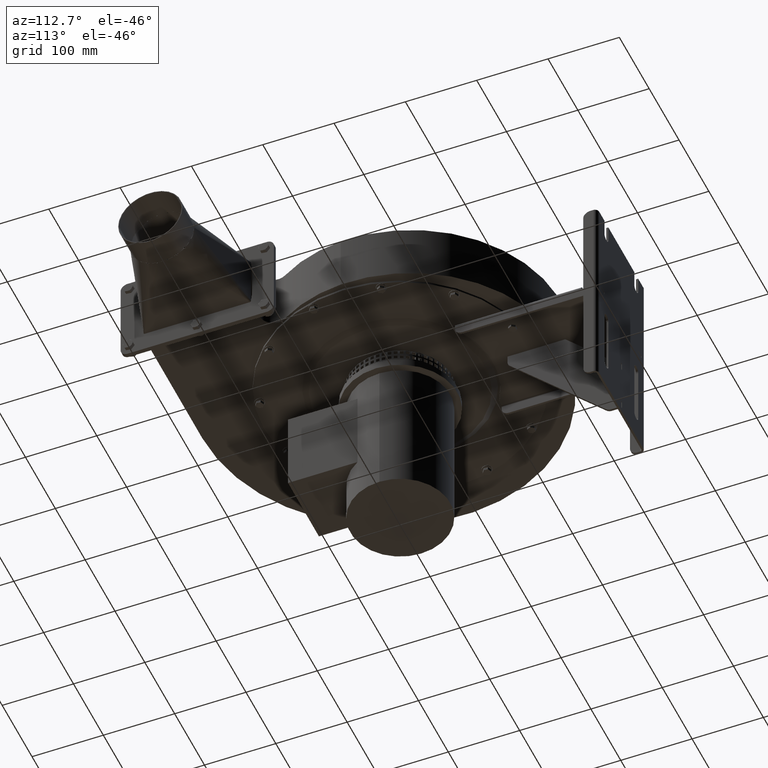
[diagram: clean part render]
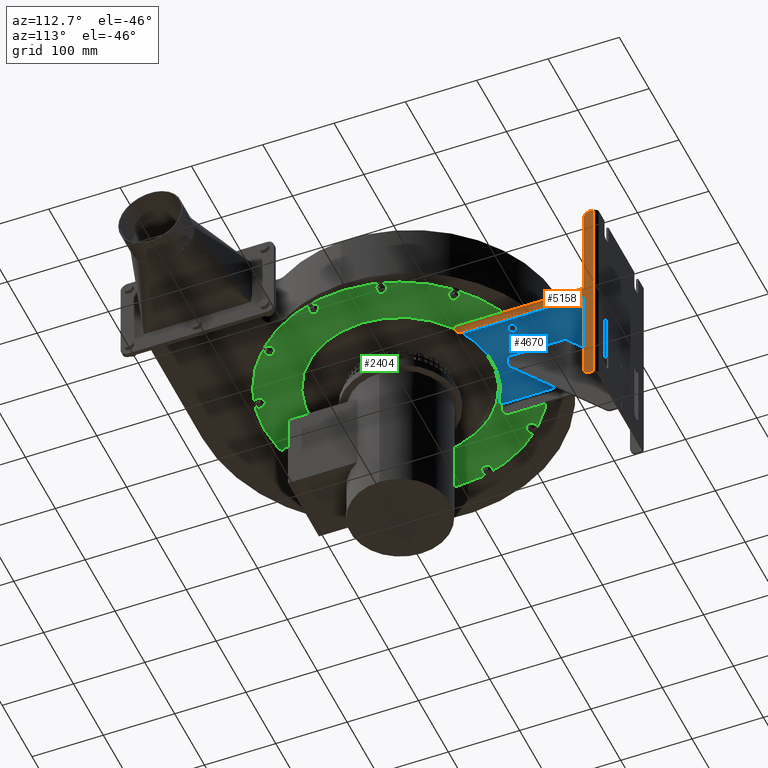
[diagram: same view with three faces highlighted in distinct colors, each labeled with its STEP entity id]
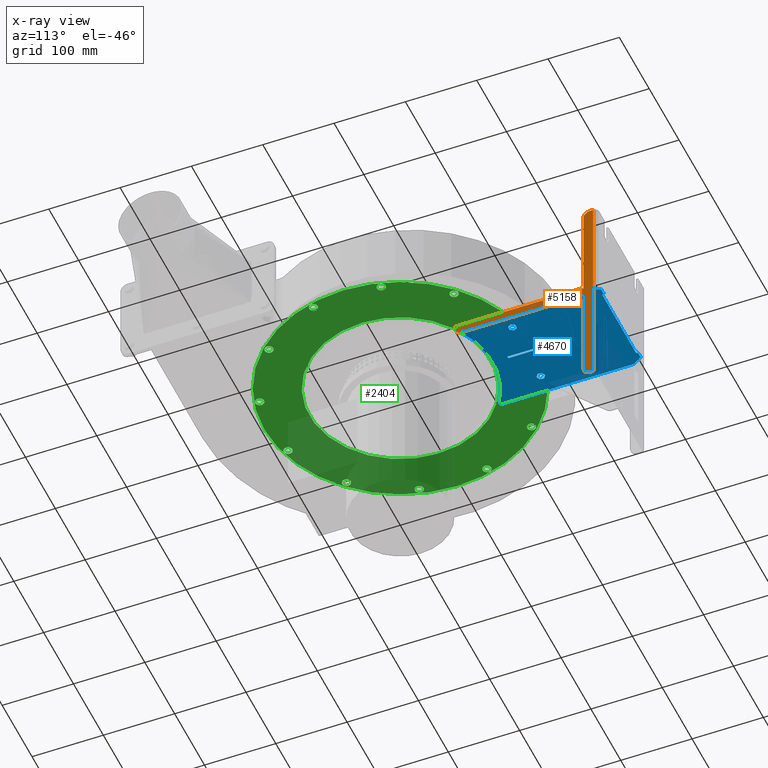
[diagram: x-ray of the same camera — body ghosted, the three highlighted faces saturated]
A machine part, auxiliary view with three faces highlighted in distinct colors.
The next image is the same camera in x-ray (body ghosted, the three faces saturated) — at least one of them is partly hidden behind the body in this view.
Their STEP definitions:

[orange] entity #5158 — the highlighted planar face has unit normal (1, 0, 0).
#5158 = ADVANCED_FACE( 'NONE', ( #11223 ), #11224, .T. );
#11223 = FACE_OUTER_BOUND( '', #18073, .T. );
#11224 = PLANE( '', #18074 );
#18073 = EDGE_LOOP( '', ( #32326, #32327, #32328, #32329, #32330, #32331, #32332, #32333, #32334, #32335, #32336, #32337, #32338 ) );
#18074 = AXIS2_PLACEMENT_3D( '', #32339, #32340, #32341 );
#32326 = ORIENTED_EDGE( '', *, *, #39845, .T. );
#32327 = ORIENTED_EDGE( '', *, *, #40245, .T. );
#32328 = ORIENTED_EDGE( '', *, *, #40079, .T. );
#32329 = ORIENTED_EDGE( '', *, *, #35974, .T. );
#32330 = ORIENTED_EDGE( '', *, *, #39797, .T. );
#32331 = ORIENTED_EDGE( '', *, *, #39052, .T. );
#32332 = ORIENTED_EDGE( '', *, *, #39491, .T. );
#32333 = ORIENTED_EDGE( '', *, *, #34883, .T. );
#32334 = ORIENTED_EDGE( '', *, *, #38090, .T. );
#32335 = ORIENTED_EDGE( '', *, *, #40307, .T. );
#32336 = ORIENTED_EDGE( '', *, *, #37129, .F. );
#32337 = ORIENTED_EDGE( '', *, *, #39239, .F. );
#32338 = ORIENTED_EDGE( '', *, *, #38079, .T. );
#32339 = CARTESIAN_POINT( '', ( 80.0000000000012, 310.000000000000, -249.000000000000 ) );
#32340 = DIRECTION( '', ( 1.00000000000000, 8.28133173932700E-193, 5.79331850487325E-119 ) );
#32341 = DIRECTION( '', ( 4.86679440971561E-208, 1.00000000000000, -1.42946253211538E-074 ) );
#34883 = EDGE_CURVE( 'NONE', #40968, #40969, #40970, .T. );
#35974 = EDGE_CURVE( 'NONE', #42857, #42855, #42858, .T. );
#37129 = EDGE_CURVE( 'NONE', #44842, #42385, #44844, .T. );
#38079 = EDGE_CURVE( 'NONE', #46296, #46293, #46297, .T. );
#38090 = EDGE_CURVE( 'NONE', #40969, #46310, #46312, .T. );
#39052 = EDGE_CURVE( 'NONE', #47713, #47714, #47715, .T. );
#39239 = EDGE_CURVE( 'NONE', #46296, #44842, #47951, .T. );
#39491 = EDGE_CURVE( 'NONE', #47714, #40968, #48262, .T. );
#39797 = EDGE_CURVE( 'NONE', #42855, #47713, #48618, .T. );
#39845 = EDGE_CURVE( 'NONE', #46293, #48673, #48675, .T. );
#40079 = EDGE_CURVE( 'NONE', #48939, #42857, #48943, .T. );
#40245 = EDGE_CURVE( 'NONE', #48673, #48939, #49130, .T. );
#40307 = EDGE_CURVE( 'NONE', #46310, #42385, #49195, .T. );
#40968 = VERTEX_POINT( 'NONE', #49789 );
#40969 = VERTEX_POINT( 'NONE', #49790 );
#40970 = LINE( '', #49791, #49792 );
#42385 = VERTEX_POINT( 'NONE', #52286 );
#42855 = VERTEX_POINT( 'NONE', #53082 );
#42857 = VERTEX_POINT( 'NONE', #53084 );
#42858 = LINE( '', #53085, #53086 );
#44842 = VERTEX_POINT( 'NONE', #56098 );
#44844 = LINE( '', #56100, #56101 );
#46293 = VERTEX_POINT( 'NONE', #58572 );
#46296 = VERTEX_POINT( 'NONE', #58576 );
#46297 = CIRCLE( '', #58577, 10.0000000000000 );
#46310 = VERTEX_POINT( 'NONE', #58591 );
#46312 = CIRCLE( '', #58594, 2.00000000000000 );
#47713 = VERTEX_POINT( 'NONE', #60946 );
#47714 = VERTEX_POINT( 'NONE', #60947 );
#47715 = LINE( '', #60948, #60949 );
#47951 = LINE( '', #61393, #61394 );
#48262 = CIRCLE( '', #62002, 10.0000000000000 );
#48618 = LINE( '', #62996, #62997 );
#48673 = VERTEX_POINT( 'NONE', #63099 );
#48675 = LINE( '', #63102, #63103 );
#48939 = VERTEX_POINT( 'NONE', #63533 );
#48943 = CIRCLE( '', #63538, 10.0000000000000 );
#49130 = LINE( '', #63869, #63870 );
#49195 = LINE( '', #63952, #63953 );
#49789 = CARTESIAN_POINT( '', ( 80.0000000000011, 290.000000000000, 41.0000000000000 ) );
#49790 = CARTESIAN_POINT( '', ( 80.0000000000009, 290.000000000000, -91.0000000000000 ) );
#49791 = CARTESIAN_POINT( '', ( 80.0000000000012, 290.000000000000, -249.000000000000 ) );
#49792 = VECTOR( '', #64600, 1000.00000000000 );
#52286 = CARTESIAN_POINT( '', ( 80.0000000000009, 287.000000000000, -89.0000000000000 ) );
#53082 = CARTESIAN_POINT( '', ( 80.0000000000012, 304.000000000000, -249.000000000000 ) );
#53084 = CARTESIAN_POINT( '', ( 80.0000000000012, 300.000000000000, -249.000000000000 ) );
#53085 = CARTESIAN_POINT( '', ( 80.0000000000012, 310.000000000000, -249.000000000000 ) );
#53086 = VECTOR( '', #65915, 1000.00000000000 );
#56098 = CARTESIAN_POINT( '', ( 80.0000000000010, 109.999999999998, -89.0000000000000 ) );
#56100 = CARTESIAN_POINT( '', ( 80.0000000000000, 200.000000000000, -89.0000000000000 ) );
#56101 = VECTOR( '', #67707, 1000.00000000000 );
#58572 = CARTESIAN_POINT( '', ( 80.0000000000010, 120.000000000000, -103.000000000000 ) );
#58576 = CARTESIAN_POINT( '', ( 80.0000000000010, 109.999999999998, -93.0000000000000 ) );
#58577 = AXIS2_PLACEMENT_3D( '', #68780, #68781, #68782 );
#58591 = CARTESIAN_POINT( '', ( 80.0000000000009, 288.000000000000, -89.0000000000000 ) );
#58594 = AXIS2_PLACEMENT_3D( '', #68797, #68798, #68799 );
#60946 = CARTESIAN_POINT( '', ( 80.0000000000012, 304.000000000000, 51.0000000000000 ) );
#60947 = CARTESIAN_POINT( '', ( 80.0000000000010, 300.000000000000, 51.0000000000000 ) );
#60948 = CARTESIAN_POINT( '', ( 80.0000000000012, 310.000000000000, 51.0000000000000 ) );
#60949 = VECTOR( '', #70058, 1000.00000000000 );
#61393 = CARTESIAN_POINT( '', ( 80.0000000000010, 109.999999999998, -96.0000000000000 ) );
#61394 = VECTOR( '', #70189, 1000.00000000000 );
#62002 = AXIS2_PLACEMENT_3D( '', #70364, #70365, #70366 );
#62996 = CARTESIAN_POINT( '', ( 80.0000000000012, 304.000000000000, -249.000000000000 ) );
#62997 = VECTOR( '', #70574, 1000.00000000000 );
#63099 = CARTESIAN_POINT( '', ( 80.0000000000012, 290.000000000000, -103.000000000000 ) );
#63102 = CARTESIAN_POINT( '', ( 80.0000000000012, 310.000000000000, -103.000000000000 ) );
#63103 = VECTOR( '', #70612, 1000.00000000000 );
#63533 = CARTESIAN_POINT( '', ( 80.0000000000012, 290.000000000000, -239.000000000000 ) );
#63538 = AXIS2_PLACEMENT_3D( '', #70761, #70762, #70763 );
#63869 = CARTESIAN_POINT( '', ( 80.0000000000012, 290.000000000000, -249.000000000000 ) );
#63870 = VECTOR( '', #70850, 1000.00000000000 );
#63952 = CARTESIAN_POINT( '', ( 80.0000000000012, 310.000000000000, -89.0000000000000 ) );
#63953 = VECTOR( '', #70877, 1000.00000000000 );
#64600 = DIRECTION( '', ( 0.000000000000000, 1.14904353122037E-015, -1.00000000000000 ) );
#65915 = DIRECTION( '', ( -3.52710303948052E-030, 1.00000000000000, 1.14904353122037E-015 ) );
#67707 = DIRECTION( '', ( -2.38753799732204E-015, 1.00000000000000, 0.000000000000000 ) );
#68780 = CARTESIAN_POINT( '', ( 80.0000000000010, 119.999999999998, -93.0000000000000 ) );
#68781 = DIRECTION( '', ( 1.00000000000000, 2.77555756156290E-015, 1.32856536664221E-015 ) );
#68782 = DIRECTION( '', ( 2.77555756156290E-015, -1.00000000000000, 0.000000000000000 ) );
#68797 = CARTESIAN_POINT( '', ( 80.0000000000000, 288.000000000000, -91.0000000000000 ) );
#68798 = DIRECTION( '', ( 1.00000000000000, -0.000000000000000, 1.13453682752503E-015 ) );
#68799 = DIRECTION( '', ( 0.000000000000000, 1.00000000000000, 0.000000000000000 ) );
#70058 = DIRECTION( '', ( 3.52710303948052E-030, -1.00000000000000, -1.14904353122037E-015 ) );
#70189 = DIRECTION( '', ( 0.000000000000000, 2.35400178016958E-030, 1.00000000000000 ) );
#70364 = CARTESIAN_POINT( '', ( 80.0000000000009, 300.000000000000, 41.0000000000000 ) );
#70365 = DIRECTION( '', ( 1.00000000000000, 1.38777878078144E-015, 1.51999659817486E-015 ) );
#70366 = DIRECTION( '', ( 1.38777878078144E-015, -1.00000000000000, 0.000000000000000 ) );
#70574 = DIRECTION( '', ( 0.000000000000000, -1.14904353122037E-015, 1.00000000000000 ) );
#70612 = DIRECTION( '', ( -3.52710303948052E-030, 1.00000000000000, 1.14904353122037E-015 ) );
#70761 = CARTESIAN_POINT( '', ( 80.0000000000012, 300.000000000000, -239.000000000000 ) );
#70762 = DIRECTION( '', ( 1.00000000000000, 2.77555756156289E-015, 1.56205655907477E-015 ) );
#70763 = DIRECTION( '', ( -2.77555756156289E-015, 1.00000000000000, 0.000000000000000 ) );
#70850 = DIRECTION( '', ( 0.000000000000000, 1.14904353122037E-015, -1.00000000000000 ) );
#70877 = DIRECTION( '', ( 3.52710303948052E-030, -1.00000000000000, -1.14904353122037E-015 ) );

[blue] entity #4670 — the highlighted planar face has unit normal (0, 0, -1).
#4670 = ADVANCED_FACE( 'NONE', ( #10394, #10395, #10396, #10397 ), #10398, .T. );
#10394 = FACE_OUTER_BOUND( '', #17198, .T. );
#10395 = FACE_BOUND( '', #17199, .T. );
#10396 = FACE_BOUND( '', #17200, .T. );
#10397 = FACE_BOUND( '', #17201, .T. );
#10398 = PLANE( '', #17202 );
#17198 = EDGE_LOOP( '', ( #30369, #30370, #30371, #30372, #30373, #30374, #30375, #30376, #30377, #30378, #30379, #30380, #30381, #30382, #30383, #30384, #30385, #30386, #30387, #30388, #30389, #30390 ) );
#17199 = EDGE_LOOP( '', ( #30391, #30392, #30393, #30394, #30395, #30396, #30397, #30398, #30399, #30400, #30401, #30402 ) );
#17200 = EDGE_LOOP( '', ( #30403, #30404, #30405, #30406, #30407, #30408 ) );
#17201 = EDGE_LOOP( '', ( #30409, #30410, #30411, #30412, #30413, #30414 ) );
#17202 = AXIS2_PLACEMENT_3D( '', #30415, #30416, #30417 );
#30369 = ORIENTED_EDGE( '', *, *, #39866, .F. );
#30370 = ORIENTED_EDGE( '', *, *, #39867, .T. );
#30371 = ORIENTED_EDGE( '', *, *, #39462, .T. );
#30372 = ORIENTED_EDGE( '', *, *, #37126, .F. );
#30373 = ORIENTED_EDGE( '', *, *, #36853, .T. );
#30374 = ORIENTED_EDGE( '', *, *, #39859, .T. );
#30375 = ORIENTED_EDGE( '', *, *, #37646, .F. );
#30376 = ORIENTED_EDGE( '', *, *, #39868, .F. );
#30377 = ORIENTED_EDGE( '', *, *, #38898, .F. );
#30378 = ORIENTED_EDGE( '', *, *, #38938, .F. );
#30379 = ORIENTED_EDGE( '', *, *, #39532, .F. );
#30380 = ORIENTED_EDGE( '', *, *, #39869, .T. );
#30381 = ORIENTED_EDGE( '', *, *, #35512, .F. );
#30382 = ORIENTED_EDGE( '', *, *, #39155, .F. );
#30383 = ORIENTED_EDGE( '', *, *, #39629, .T. );
#30384 = ORIENTED_EDGE( '', *, *, #39870, .F. );
#30385 = ORIENTED_EDGE( '', *, *, #39783, .F. );
#30386 = ORIENTED_EDGE( '', *, *, #39296, .T. );
#30387 = ORIENTED_EDGE( '', *, *, #39240, .F. );
#30388 = ORIENTED_EDGE( '', *, *, #37204, .F. );
#30389 = ORIENTED_EDGE( '', *, *, #39871, .T. );
#30390 = ORIENTED_EDGE( '', *, *, #37796, .F. );
#30391 = ORIENTED_EDGE( '', *, *, #39872, .T. );
#30392 = ORIENTED_EDGE( '', *, *, #37008, .T. );
#30393 = ORIENTED_EDGE( '', *, *, #39417, .T. );
#30394 = ORIENTED_EDGE( '', *, *, #37467, .T. );
#30395 = ORIENTED_EDGE( '', *, *, #39873, .T. );
#30396 = ORIENTED_EDGE( '', *, *, #39874, .T. );
#30397 = ORIENTED_EDGE( '', *, *, #39875, .T. );
#30398 = ORIENTED_EDGE( '', *, *, #39876, .T. );
#30399 = ORIENTED_EDGE( '', *, *, #39877, .T. );
#30400 = ORIENTED_EDGE( '', *, *, #37982, .T. );
#30401 = ORIENTED_EDGE( '', *, *, #39416, .T. );
#30402 = ORIENTED_EDGE( '', *, *, #39325, .T. );
#30403 = ORIENTED_EDGE( '', *, *, #35335, .T. );
#30404 = ORIENTED_EDGE( '', *, *, #36967, .T. );
#30405 = ORIENTED_EDGE( '', *, *, #35637, .T. );
#30406 = ORIENTED_EDGE( '', *, *, #37159, .T. );
#30407 = ORIENTED_EDGE( '', *, *, #39339, .T. );
#30408 = ORIENTED_EDGE( '', *, *, #39878, .T. );
#30409 = ORIENTED_EDGE( '', *, *, #39483, .T. );
#30410 = ORIENTED_EDGE( '', *, *, #39430, .T. );
#30411 = ORIENTED_EDGE( '', *, *, #39879, .T. );
#30412 = ORIENTED_EDGE( '', *, *, #39466, .T. );
#30413 = ORIENTED_EDGE( '', *, *, #39412, .T. );
#30414 = ORIENTED_EDGE( '', *, *, #37076, .T. );
#30415 = CARTESIAN_POINT( '', ( 7.86035751569564E-013, 201.589759900118, -86.0000000000000 ) );
#30416 = DIRECTION( '', ( 1.11943758389703E-015, 3.36844631226473E-031, -1.00000000000000 ) );
#30417 = DIRECTION( '', ( 0.000000000000000, -1.00000000000000, -3.36844631226473E-031 ) );
#35335 = EDGE_CURVE( 'NONE', #41762, #41767, #41769, .T. );
#35512 = EDGE_CURVE( 'NONE', #42071, #42073, #42074, .T. );
#35637 = EDGE_CURVE( 'NONE', #42275, #42280, #42282, .T. );
#36853 = EDGE_CURVE( 'NONE', #44409, #44413, #44415, .T. );
#36967 = EDGE_CURVE( 'NONE', #41767, #42275, #44591, .T. );
#37008 = EDGE_CURVE( 'NONE', #44653, #44651, #44654, .T. );
#37076 = EDGE_CURVE( 'NONE', #44752, #44757, #44759, .T. );
#37126 = EDGE_CURVE( 'NONE', #44409, #44836, #44840, .T. );
#37159 = EDGE_CURVE( 'NONE', #42280, #44888, #44890, .T. );
#37204 = EDGE_CURVE( 'NONE', #44956, #44954, #44958, .T. );
#37467 = EDGE_CURVE( 'NONE', #42538, #45391, #45393, .T. );
#37646 = EDGE_CURVE( 'NONE', #45660, #45661, #45662, .T. );
#37796 = EDGE_CURVE( 'NONE', #45881, #45879, #45883, .T. );
#37982 = EDGE_CURVE( 'NONE', #46150, #42536, #46151, .T. );
#38898 = EDGE_CURVE( 'NONE', #43118, #47508, #47509, .T. );
#38938 = EDGE_CURVE( 'NONE', #46217, #43118, #47565, .T. );
#39155 = EDGE_CURVE( 'NONE', #47844, #42071, #47846, .T. );
#39240 = EDGE_CURVE( 'NONE', #44954, #47952, #47953, .T. );
#39296 = EDGE_CURVE( 'NONE', #42381, #47952, #48023, .T. );
#39325 = EDGE_CURVE( 'NONE', #48059, #48057, #48060, .T. );
#39339 = EDGE_CURVE( 'NONE', #44888, #48075, #48077, .T. );
#39412 = EDGE_CURVE( 'NONE', #48160, #44752, #48162, .T. );
#39416 = EDGE_CURVE( 'NONE', #42536, #48059, #48167, .T. );
#39417 = EDGE_CURVE( 'NONE', #44651, #42538, #48168, .T. );
#39430 = EDGE_CURVE( 'NONE', #48181, #48183, #48185, .T. );
#39462 = EDGE_CURVE( 'NONE', #48227, #44836, #48228, .T. );
#39466 = EDGE_CURVE( 'NONE', #48231, #48160, #48233, .T. );
#39483 = EDGE_CURVE( 'NONE', #44757, #48181, #48253, .T. );
#39532 = EDGE_CURVE( 'NONE', #48314, #46217, #48316, .T. );
#39629 = EDGE_CURVE( 'NONE', #47844, #48430, #48432, .T. );
#39783 = EDGE_CURVE( 'NONE', #42381, #48599, #48600, .T. );
#39859 = EDGE_CURVE( 'NONE', #44413, #45661, #48692, .T. );
#39866 = EDGE_CURVE( 'NONE', #48699, #45881, #48700, .T. );
#39867 = EDGE_CURVE( 'NONE', #48699, #48227, #48701, .T. );
#39868 = EDGE_CURVE( 'NONE', #47508, #45660, #48702, .T. );
#39869 = EDGE_CURVE( 'NONE', #48314, #42073, #48703, .T. );
#39870 = EDGE_CURVE( 'NONE', #48599, #48430, #48704, .T. );
#39871 = EDGE_CURVE( 'NONE', #44956, #45879, #48705, .T. );
#39872 = EDGE_CURVE( 'NONE', #48057, #44653, #48706, .T. );
#39873 = EDGE_CURVE( 'NONE', #45391, #48707, #48708, .T. );
#39874 = EDGE_CURVE( 'NONE', #48707, #48709, #48710, .T. );
#39875 = EDGE_CURVE( 'NONE', #48709, #48711, #48712, .T. );
#39876 = EDGE_CURVE( 'NONE', #48711, #48713, #48714, .T. );
#39877 = EDGE_CURVE( 'NONE', #48713, #46150, #48715, .T. );
#39878 = EDGE_CURVE( 'NONE', #48075, #41762, #48716, .T. );
#39879 = EDGE_CURVE( 'NONE', #48183, #48231, #48717, .T. );
#41762 = VERTEX_POINT( 'NONE', #51086 );
#41767 = VERTEX_POINT( 'NONE', #51096 );
#41769 = LINE( '', #51099, #51100 );
#42071 = VERTEX_POINT( 'NONE', #51549 );
#42073 = VERTEX_POINT( 'NONE', #51552 );
#42074 = LINE( '', #51553, #51554 );
#42275 = VERTEX_POINT( 'NONE', #52030 );
#42280 = VERTEX_POINT( 'NONE', #52040 );
#42282 = LINE( '', #52043, #52044 );
#42381 = VERTEX_POINT( 'NONE', #52281 );
#42536 = VERTEX_POINT( 'NONE', #52556 );
#42538 = VERTEX_POINT( 'NONE', #52559 );
#43118 = VERTEX_POINT( 'NONE', #53515 );
#44409 = VERTEX_POINT( 'NONE', #55330 );
#44413 = VERTEX_POINT( 'NONE', #55336 );
#44415 = LINE( '', #55339, #55340 );
#44591 = LINE( '', #55644, #55645 );
#44651 = VERTEX_POINT( 'NONE', #55739 );
#44653 = VERTEX_POINT( 'NONE', #55742 );
#44654 = LINE( '', #55743, #55744 );
#44752 = VERTEX_POINT( 'NONE', #55947 );
#44757 = VERTEX_POINT( 'NONE', #55957 );
#44759 = LINE( '', #55960, #55961 );
#44836 = VERTEX_POINT( 'NONE', #56091 );
#44840 = CIRCLE( '', #56096, 2.00000000000000 );
#44888 = VERTEX_POINT( 'NONE', #56164 );
#44890 = LINE( '', #56167, #56168 );
#44954 = VERTEX_POINT( 'NONE', #56260 );
#44956 = VERTEX_POINT( 'NONE', #56263 );
#44958 = CIRCLE( '', #56266, 2.00000000000000 );
#45391 = VERTEX_POINT( 'NONE', #57026 );
#45393 = LINE( '', #57029, #57030 );
#45660 = VERTEX_POINT( 'NONE', #57468 );
#45661 = VERTEX_POINT( 'NONE', #57469 );
#45662 = LINE( '', #57470, #57471 );
#45879 = VERTEX_POINT( 'NONE', #57840 );
#45881 = VERTEX_POINT( 'NONE', #57843 );
#45883 = CIRCLE( '', #57846, 2.00000000000000 );
#46150 = VERTEX_POINT( 'NONE', #58337 );
#46151 = LINE( '', #58338, #58339 );
#46217 = VERTEX_POINT( 'NONE', #58447 );
#47508 = VERTEX_POINT( 'NONE', #60599 );
#47509 = LINE( '', #60600, #60601 );
#47565 = LINE( '', #60678, #60679 );
#47844 = VERTEX_POINT( 'NONE', #61206 );
#47846 = LINE( '', #61209, #61210 );
#47952 = VERTEX_POINT( 'NONE', #61395 );
#47953 = LINE( '', #61396, #61397 );
#48023 = LINE( '', #61557, #61558 );
#48057 = VERTEX_POINT( 'NONE', #61618 );
#48059 = VERTEX_POINT( 'NONE', #61621 );
#48060 = LINE( '', #61622, #61623 );
#48075 = VERTEX_POINT( 'NONE', #61645 );
#48077 = LINE( '', #61648, #61649 );
#48160 = VERTEX_POINT( 'NONE', #61837 );
#48162 = LINE( '', #61840, #61841 );
#48167 = LINE( '', #61846, #61847 );
#48168 = LINE( '', #61848, #61849 );
#48181 = VERTEX_POINT( 'NONE', #61870 );
#48183 = VERTEX_POINT( 'NONE', #61873 );
#48185 = LINE( '', #61876, #61877 );
#48227 = VERTEX_POINT( 'NONE', #61934 );
#48228 = LINE( '', #61935, #61936 );
#48231 = VERTEX_POINT( 'NONE', #61940 );
#48233 = LINE( '', #61943, #61944 );
#48253 = LINE( '', #61990, #61991 );
#48314 = VERTEX_POINT( 'NONE', #62063 );
#48316 = LINE( '', #62066, #62067 );
#48430 = VERTEX_POINT( 'NONE', #62299 );
#48432 = LINE( '', #62302, #62303 );
#48599 = VERTEX_POINT( 'NONE', #62951 );
#48600 = LINE( '', #62952, #62953 );
#48692 = LINE( '', #63133, #63134 );
#48699 = VERTEX_POINT( 'NONE', #63142 );
#48700 = LINE( '', #63143, #63144 );
#48701 = LINE( '', #63145, #63146 );
#48702 = LINE( '', #63147, #63148 );
#48703 = LINE( '', #63149, #63150 );
#48704 = CIRCLE( '', #63151, 2.00000000000000 );
#48705 = CIRCLE( '', #63152, 131.000000000000 );
#48706 = LINE( '', #63153, #63154 );
#48707 = VERTEX_POINT( 'NONE', #63155 );
#48708 = LINE( '', #63156, #63157 );
#48709 = VERTEX_POINT( 'NONE', #63158 );
#48710 = LINE( '', #63159, #63160 );
#48711 = VERTEX_POINT( 'NONE', #63161 );
#48712 = LINE( '', #63162, #63163 );
#48713 = VERTEX_POINT( 'NONE', #63164 );
#48714 = LINE( '', #63165, #63166 );
#48715 = LINE( '', #63167, #63168 );
#48716 = LINE( '', #63169, #63170 );
#48717 = LINE( '', #63171, #63172 );
#51086 = CARTESIAN_POINT( '', ( 53.2467199845890, 177.728462617496, -86.0000000000000 ) );
#51096 = CARTESIAN_POINT( '', ( 49.9533855140331, 182.470538259911, -86.0000000000000 ) );
#51099 = CARTESIAN_POINT( '', ( 53.2467199845890, 177.728462617496, -86.0000000000000 ) );
#51100 = VECTOR( '', #65167, 1000.00000000000 );
#51549 = CARTESIAN_POINT( '', ( 67.0000000000000, 309.500000000000, -86.0000000000000 ) );
#51552 = CARTESIAN_POINT( '', ( 57.0000000000000, 309.500000000000, -86.0000000000000 ) );
#51553 = CARTESIAN_POINT( '', ( 67.0000000000000, 309.500000000000, -86.0000000000000 ) );
#51554 = VECTOR( '', #65377, 1000.00000000000 );
#52030 = CARTESIAN_POINT( '', ( 44.1999603057567, 181.989464766458, -86.0000000000000 ) );
#52040 = CARTESIAN_POINT( '', ( 41.7398695680361, 176.766315630590, -86.0000000000000 ) );
#52043 = CARTESIAN_POINT( '', ( 44.1999603057567, 181.989464766458, -86.0000000000000 ) );
#52044 = VECTOR( '', #65498, 1000.00000000000 );
#52281 = CARTESIAN_POINT( '', ( 74.0000000000000, 287.000000000000, -86.0000000000000 ) );
#52556 = CARTESIAN_POINT( '', ( -1.49999999999959, 161.200000000000, -86.0000000000000 ) );
#52559 = CARTESIAN_POINT( '', ( 1.50000000000035, 161.200000000000, -86.0000000000000 ) );
#53515 = CARTESIAN_POINT( '', ( -56.7999999999993, 307.000000000000, -86.0000000000000 ) );
#55330 = CARTESIAN_POINT( '', ( -73.6384638410392, 297.516480227087, -86.0000000000000 ) );
#55336 = CARTESIAN_POINT( '', ( -67.0000000000000, 307.000000000000, -86.0000000000000 ) );
#55339 = CARTESIAN_POINT( '', ( -74.0000000000000, 297.000000000000, -86.0000000000000 ) );
#55340 = VECTOR( '', #67369, 1000.00000000000 );
#55644 = CARTESIAN_POINT( '', ( 49.9533855140333, 182.470538259910, -86.0000000000000 ) );
#55645 = VECTOR( '', #67496, 1000.00000000000 );
#55739 = CARTESIAN_POINT( '', ( 1.60000000000093, 161.200000000000, -86.0000000000000 ) );
#55742 = CARTESIAN_POINT( '', ( 1.60000000000094, 150.800000000000, -86.0000000000000 ) );
#55743 = CARTESIAN_POINT( '', ( 1.60000000000094, 201.589759900118, -86.0000000000000 ) );
#55744 = VECTOR( '', #67543, 1000.00000000000 );
#55947 = CARTESIAN_POINT( '', ( -42.2701456404444, 174.787298386323, -86.0000000000000 ) );
#55957 = CARTESIAN_POINT( '', ( -42.7512191338974, 180.540723594599, -86.0000000000000 ) );
#55960 = CARTESIAN_POINT( '', ( -42.2701456404444, 174.787298386323, -86.0000000000000 ) );
#55961 = VECTOR( '', #67625, 1000.00000000000 );
#56091 = CARTESIAN_POINT( '', ( -74.0000000000000, 296.369555538359, -86.0000000000000 ) );
#56096 = AXIS2_PLACEMENT_3D( '', #67701, #67702, #67703 );
#56164 = CARTESIAN_POINT( '', ( 45.0332040385920, 172.024239988176, -86.0000000000000 ) );
#56167 = CARTESIAN_POINT( '', ( 41.7398695680363, 176.766315630590, -86.0000000000000 ) );
#56168 = VECTOR( '', #67743, 1000.00000000000 );
#56260 = CARTESIAN_POINT( '', ( 69.7860725524613, 109.999999999998, -86.0000000000000 ) );
#56263 = CARTESIAN_POINT( '', ( 68.7366579276122, 110.297434598860, -86.0000000000000 ) );
#56266 = AXIS2_PLACEMENT_3D( '', #67793, #67794, #67795 );
#57026 = CARTESIAN_POINT( '', ( 1.50000000000054, 221.800000000000, -86.0000000000000 ) );
#57029 = CARTESIAN_POINT( '', ( 1.50000000000035, 201.589759900118, -86.0000000000000 ) );
#57030 = VECTOR( '', #68185, 1000.00000000000 );
#57468 = CARTESIAN_POINT( '', ( -57.0000000000000, 309.500000000000, -86.0000000000000 ) );
#57469 = CARTESIAN_POINT( '', ( -67.0000000000000, 309.500000000000, -86.0000000000000 ) );
#57470 = CARTESIAN_POINT( '', ( -67.0000000000000, 309.500000000000, -86.0000000000000 ) );
#57471 = VECTOR( '', #68365, 1000.00000000000 );
#57840 = CARTESIAN_POINT( '', ( -68.7366579276101, 110.297434598859, -86.0000000000000 ) );
#57843 = CARTESIAN_POINT( '', ( -69.7860725524591, 109.999999999997, -86.0000000000000 ) );
#57846 = AXIS2_PLACEMENT_3D( '', #68526, #68527, #68528 );
#58337 = CARTESIAN_POINT( '', ( -1.49999999999940, 221.800000000000, -86.0000000000000 ) );
#58338 = CARTESIAN_POINT( '', ( -1.49999999999939, 201.589759900118, -86.0000000000000 ) );
#58339 = VECTOR( '', #68693, 1000.00000000000 );
#58447 = CARTESIAN_POINT( '', ( 56.8000000000010, 307.000000000000, -86.0000000000000 ) );
#60599 = CARTESIAN_POINT( '', ( -57.0000000000000, 307.000000000000, -86.0000000000000 ) );
#60600 = CARTESIAN_POINT( '', ( 74.0000000000000, 307.000000000000, -86.0000000000000 ) );
#60601 = VECTOR( '', #69928, 1000.00000000000 );
#60678 = CARTESIAN_POINT( '', ( 1.00251468229415E-012, 307.000000000000, -86.0000000000000 ) );
#60679 = VECTOR( '', #69974, 1000.00000000000 );
#61206 = CARTESIAN_POINT( '', ( 67.0000000000000, 307.000000000000, -86.0000000000000 ) );
#61209 = CARTESIAN_POINT( '', ( 67.0000000000000, 308.250000000000, -86.0000000000000 ) );
#61210 = VECTOR( '', #70134, 1000.00000000000 );
#61395 = CARTESIAN_POINT( '', ( 74.0000000000010, 109.999999999998, -86.0000000000000 ) );
#61396 = CARTESIAN_POINT( '', ( 78.5000000000011, 109.999999999998, -86.0000000000000 ) );
#61397 = VECTOR( '', #70190, 1000.00000000000 );
#61557 = CARTESIAN_POINT( '', ( 74.0000000000008, 200.000000000000, -86.0000000000000 ) );
#61558 = VECTOR( '', #70234, 1000.00000000000 );
#61618 = CARTESIAN_POINT( '', ( -1.59999999999907, 150.800000000000, -86.0000000000000 ) );
#61621 = CARTESIAN_POINT( '', ( -1.59999999999909, 161.200000000000, -86.0000000000000 ) );
#61622 = CARTESIAN_POINT( '', ( -1.59999999999910, 201.589759900118, -86.0000000000000 ) );
#61623 = VECTOR( '', #70254, 1000.00000000000 );
#61645 = CARTESIAN_POINT( '', ( 50.7866292468686, 172.505313481629, -86.0000000000000 ) );
#61648 = CARTESIAN_POINT( '', ( 45.0332040385921, 172.024239988176, -86.0000000000000 ) );
#61649 = VECTOR( '', #70262, 1000.00000000000 );
#61837 = CARTESIAN_POINT( '', ( -47.0122212828589, 171.493963915767, -86.0000000000000 ) );
#61840 = CARTESIAN_POINT( '', ( -47.0122212828591, 171.493963915767, -86.0000000000000 ) );
#61841 = VECTOR( '', #70306, 1000.00000000000 );
#61846 = CARTESIAN_POINT( '', ( 7.86035751569564E-013, 161.200000000000, -86.0000000000000 ) );
#61847 = VECTOR( '', #70310, 1000.00000000000 );
#61848 = CARTESIAN_POINT( '', ( 7.86035751569564E-013, 161.200000000000, -86.0000000000000 ) );
#61849 = VECTOR( '', #70311, 1000.00000000000 );
#61870 = CARTESIAN_POINT( '', ( -47.9743682697652, 183.000814332320, -86.0000000000000 ) );
#61873 = CARTESIAN_POINT( '', ( -52.7164439121798, 179.707479861764, -86.0000000000000 ) );
#61876 = CARTESIAN_POINT( '', ( -47.9743682697651, 183.000814332320, -86.0000000000000 ) );
#61877 = VECTOR( '', #70318, 1000.00000000000 );
#61934 = CARTESIAN_POINT( '', ( -74.0000000000000, 287.000000000000, -86.0000000000000 ) );
#61935 = CARTESIAN_POINT( '', ( -74.0000000000000, 298.500000000000, -86.0000000000000 ) );
#61936 = VECTOR( '', #70346, 1000.00000000000 );
#61940 = CARTESIAN_POINT( '', ( -52.2353704187267, 173.954054653488, -86.0000000000000 ) );
#61943 = CARTESIAN_POINT( '', ( -52.2353704187266, 173.954054653488, -86.0000000000000 ) );
#61944 = VECTOR( '', #70349, 1000.00000000000 );
#61990 = CARTESIAN_POINT( '', ( -42.7512191338972, 180.540723594599, -86.0000000000000 ) );
#61991 = VECTOR( '', #70358, 1000.00000000000 );
#62063 = CARTESIAN_POINT( '', ( 57.0000000000000, 307.000000000000, -86.0000000000000 ) );
#62066 = CARTESIAN_POINT( '', ( 74.0000000000000, 307.000000000000, -86.0000000000000 ) );
#62067 = VECTOR( '', #70410, 1000.00000000000 );
#62299 = CARTESIAN_POINT( '', ( 73.6384638410387, 297.516480227087, -86.0000000000000 ) );
#62302 = CARTESIAN_POINT( '', ( 67.0000000000000, 307.000000000000, -86.0000000000000 ) );
#62303 = VECTOR( '', #70488, 1000.00000000000 );
#62951 = CARTESIAN_POINT( '', ( 74.0000000000000, 296.369555538360, -86.0000000000000 ) );
#62952 = CARTESIAN_POINT( '', ( 74.0000000000000, 298.500000000000, -86.0000000000000 ) );
#62953 = VECTOR( '', #70563, 1000.00000000000 );
#63133 = CARTESIAN_POINT( '', ( -67.0000000000000, 308.250000000000, -86.0000000000000 ) );
#63134 = VECTOR( '', #70618, 1000.00000000000 );
#63142 = CARTESIAN_POINT( '', ( -73.9999999999991, 109.999999999997, -86.0000000000000 ) );
#63143 = CARTESIAN_POINT( '', ( -78.4999999999989, 109.999999999997, -86.0000000000000 ) );
#63144 = VECTOR( '', #70620, 1000.00000000000 );
#63145 = CARTESIAN_POINT( '', ( -73.9999999999992, 201.589759900118, -86.0000000000000 ) );
#63146 = VECTOR( '', #70621, 1000.00000000000 );
#63147 = CARTESIAN_POINT( '', ( -57.0000000000000, 308.250000000000, -86.0000000000000 ) );
#63148 = VECTOR( '', #70622, 1000.00000000000 );
#63149 = CARTESIAN_POINT( '', ( 57.0000000000000, 308.250000000000, -86.0000000000000 ) );
#63150 = VECTOR( '', #70623, 1000.00000000000 );
#63151 = AXIS2_PLACEMENT_3D( '', #70624, #70625, #70626 );
#63152 = AXIS2_PLACEMENT_3D( '', #70627, #70628, #70629 );
#63153 = CARTESIAN_POINT( '', ( 7.86035751569564E-013, 150.800000000000, -86.0000000000000 ) );
#63154 = VECTOR( '', #70630, 1000.00000000000 );
#63155 = CARTESIAN_POINT( '', ( 1.60000000000075, 221.800000000000, -86.0000000000000 ) );
#63156 = CARTESIAN_POINT( '', ( 1.60000000000076, 221.800000000000, -86.0000000000000 ) );
#63157 = VECTOR( '', #70631, 1000.00000000000 );
#63158 = CARTESIAN_POINT( '', ( 1.60000000000074, 232.200000000000, -86.0000000000000 ) );
#63159 = CARTESIAN_POINT( '', ( 1.60000000000073, 232.200000000000, -86.0000000000000 ) );
#63160 = VECTOR( '', #70632, 1000.00000000000 );
#63161 = CARTESIAN_POINT( '', ( -1.59999999999927, 232.200000000000, -86.0000000000000 ) );
#63162 = CARTESIAN_POINT( '', ( -1.59999999999927, 232.200000000000, -86.0000000000000 ) );
#63163 = VECTOR( '', #70633, 1000.00000000000 );
#63164 = CARTESIAN_POINT( '', ( -1.59999999999925, 221.800000000000, -86.0000000000000 ) );
#63165 = CARTESIAN_POINT( '', ( -1.59999999999924, 221.800000000000, -86.0000000000000 ) );
#63166 = VECTOR( '', #70634, 1000.00000000000 );
#63167 = CARTESIAN_POINT( '', ( 1.60000000000076, 221.800000000000, -86.0000000000000 ) );
#63168 = VECTOR( '', #70635, 1000.00000000000 );
#63169 = CARTESIAN_POINT( '', ( 50.7866292468687, 172.505313481629, -86.0000000000000 ) );
#63170 = VECTOR( '', #70636, 1000.00000000000 );
#63171 = CARTESIAN_POINT( '', ( -52.7164439121797, 179.707479861764, -86.0000000000000 ) );
#63172 = VECTOR( '', #70637, 1000.00000000000 );
#65167 = DIRECTION( '', ( -0.570422262932066, 0.821351594599695, 0.000000000000000 ) );
#65377 = DIRECTION( '', ( -1.00000000000000, 0.000000000000000, -4.33468124082052E-045 ) );
#65498 = DIRECTION( '', ( -0.426100214896149, -0.904675967883228, -2.40370335797931E-015 ) );
#67369 = DIRECTION( '', ( 0.573462344363322, 0.819231920519045, -1.31011285965312E-015 ) );
#67496 = DIRECTION( '', ( -0.996522477828225, -0.0833243732835383, 0.000000000000000 ) );
#67543 = DIRECTION( '', ( 0.000000000000000, 1.00000000000000, 3.36844631226473E-031 ) );
#67625 = DIRECTION( '', ( -0.0833243732835283, 0.996522477828226, 0.000000000000000 ) );
#67701 = CARTESIAN_POINT( '', ( -72.0000000000000, 296.369555538359, -86.0000000000000 ) );
#67702 = DIRECTION( '', ( -1.01179291069917E-016, 5.61657892805361E-030, 1.00000000000000 ) );
#67703 = DIRECTION( '', ( 5.55111512312578E-014, 1.00000000000000, 4.20389539297445E-045 ) );
#67743 = DIRECTION( '', ( 0.570422262932079, -0.821351594599685, 2.40370335797965E-015 ) );
#67793 = CARTESIAN_POINT( '', ( 69.7860725524613, 111.999999999998, -86.0000000000000 ) );
#67794 = DIRECTION( '', ( 0.000000000000000, 2.93688543036799E-016, 1.00000000000000 ) );
#67795 = DIRECTION( '', ( -1.00000000000000, 0.000000000000000, 0.000000000000000 ) );
#68185 = DIRECTION( '', ( 0.000000000000000, 1.00000000000000, 3.36844631226473E-031 ) );
#68365 = DIRECTION( '', ( -1.00000000000000, 0.000000000000000, -4.33468124082052E-045 ) );
#68526 = CARTESIAN_POINT( '', ( -69.7860725524591, 111.999999999998, -86.0000000000000 ) );
#68527 = DIRECTION( '', ( 2.03787364092544E-030, -2.93688543036799E-016, 1.00000000000000 ) );
#68528 = DIRECTION( '', ( -1.00000000000000, -6.93889390390722E-015, 1.75162308040602E-045 ) );
#68693 = DIRECTION( '', ( 0.000000000000000, -1.00000000000000, -3.36844631226473E-031 ) );
#69928 = DIRECTION( '', ( -1.00000000000000, 0.000000000000000, -5.15184398060085E-045 ) );
#69974 = DIRECTION( '', ( -1.00000000000000, -1.92055561245564E-015, 5.76273050867317E-031 ) );
#70134 = DIRECTION( '', ( -4.25726037283229E-030, 1.00000000000000, 1.11943758389705E-015 ) );
#70190 = DIRECTION( '', ( 1.00000000000000, 2.38753799732204E-015, -5.62026869591860E-045 ) );
#70234 = DIRECTION( '', ( 2.38753799732204E-015, -1.00000000000000, 0.000000000000000 ) );
#70254 = DIRECTION( '', ( 0.000000000000000, -1.00000000000000, -3.36844631226473E-031 ) );
#70262 = DIRECTION( '', ( 0.996522477828226, 0.0833243732835341, 0.000000000000000 ) );
#70306 = DIRECTION( '', ( 0.821351594599693, 0.570422262932068, 2.40370335797942E-015 ) );
#70310 = DIRECTION( '', ( -1.00000000000000, 3.77076540128849E-046, -1.11943758389703E-015 ) );
#70311 = DIRECTION( '', ( -1.00000000000000, 3.77076540128849E-046, -1.11943758389703E-015 ) );
#70318 = DIRECTION( '', ( -0.821351594599691, -0.570422262932071, 0.000000000000000 ) );
#70346 = DIRECTION( '', ( -3.60256745960639E-030, 1.00000000000000, 1.11943758389703E-015 ) );
#70349 = DIRECTION( '', ( 0.904675967883221, -0.426100214896164, 0.000000000000000 ) );
#70358 = DIRECTION( '', ( -0.904675967883230, 0.426100214896145, -2.40370335797937E-015 ) );
#70410 = DIRECTION( '', ( -1.00000000000000, 0.000000000000000, -5.15184398060085E-045 ) );
#70488 = DIRECTION( '', ( 0.573462344363327, -0.819231920519041, 0.000000000000000 ) );
#70563 = DIRECTION( '', ( -3.60256745960639E-030, 1.00000000000000, 1.11943758389703E-015 ) );
#70618 = DIRECTION( '', ( -4.25726037283203E-030, 1.00000000000000, 1.11943758389703E-015 ) );
#70620 = DIRECTION( '', ( 1.00000000000000, 2.68359747055541E-015, -7.15789308026584E-045 ) );
#70621 = DIRECTION( '', ( 0.000000000000000, 1.00000000000000, 3.36844631226473E-031 ) );
#70622 = DIRECTION( '', ( -4.25726037283203E-030, 1.00000000000000, 1.11943758389703E-015 ) );
#70623 = DIRECTION( '', ( -4.25726037283229E-030, 1.00000000000000, 1.11943758389705E-015 ) );
#70624 = CARTESIAN_POINT( '', ( 72.0000000000000, 296.369555538360, -86.0000000000000 ) );
#70625 = DIRECTION( '', ( -1.01179291069935E-016, 0.000000000000000, 1.00000000000000 ) );
#70626 = DIRECTION( '', ( 0.000000000000000, -1.00000000000000, 0.000000000000000 ) );
#70627 = CARTESIAN_POINT( '', ( 1.36034311181606E-012, -1.22059917569459, -86.0000000000000 ) );
#70628 = DIRECTION( '', ( -1.16531042661037E-015, 3.74779590883315E-017, 1.00000000000000 ) );
#70629 = DIRECTION( '', ( -1.00000000000000, 0.000000000000000, -1.16531042661037E-015 ) );
#70630 = DIRECTION( '', ( 1.00000000000000, -3.77076540128849E-046, 1.11943758389703E-015 ) );
#70631 = DIRECTION( '', ( 1.00000000000000, 2.68359747055541E-015, -7.15789308026584E-045 ) );
#70632 = DIRECTION( '', ( -4.19750915262654E-030, 1.00000000000000, 1.11943758389704E-015 ) );
#70633 = DIRECTION( '', ( -1.00000000000000, 0.000000000000000, -1.31172768054722E-043 ) );
#70634 = DIRECTION( '', ( 2.49678109621945E-015, -1.00000000000000, 0.000000000000000 ) );
#70635 = DIRECTION( '', ( 1.00000000000000, 2.68359747055541E-015, -7.15789308026584E-045 ) );
#70636 = DIRECTION( '', ( 0.426100214896162, 0.904675967883222, 0.000000000000000 ) );
#70637 = DIRECTION( '', ( 0.0833243732835303, -0.996522477828226, 0.000000000000000 ) );

[green] entity #2404 — the highlighted planar face has unit normal (-0, 0, -1).
#2404 = ADVANCED_FACE( 'NONE', ( #6202, #6203, #6204, #6205, #6206, #6207, #6208, #6209, #6210, #6211, #6212, #6213 ), #6214, .T. );
#6202 = FACE_OUTER_BOUND( '', #12553, .T. );
#6203 = FACE_BOUND( '', #12554, .T. );
#6204 = FACE_BOUND( '', #12555, .T. );
#6205 = FACE_BOUND( '', #12556, .T. );
#6206 = FACE_BOUND( '', #12557, .T. );
#6207 = FACE_BOUND( '', #12558, .T. );
#6208 = FACE_BOUND( '', #12559, .T. );
#6209 = FACE_BOUND( '', #12560, .T. );
#6210 = FACE_BOUND( '', #12561, .T. );
#6211 = FACE_BOUND( '', #12562, .T. );
#6212 = FACE_BOUND( '', #12563, .T. );
#6213 = FACE_BOUND( '', #12564, .T. );
#6214 = PLANE( '', #12565 );
#12553 = EDGE_LOOP( '', ( #19937, #19938, #19939, #19940, #19941, #19942, #19943, #19944 ) );
#12554 = EDGE_LOOP( '', ( #19945 ) );
#12555 = EDGE_LOOP( '', ( #19946 ) );
#12556 = EDGE_LOOP( '', ( #19947 ) );
#12557 = EDGE_LOOP( '', ( #19948 ) );
#12558 = EDGE_LOOP( '', ( #19949 ) );
#12559 = EDGE_LOOP( '', ( #19950 ) );
#12560 = EDGE_LOOP( '', ( #19951 ) );
#12561 = EDGE_LOOP( '', ( #19952 ) );
#12562 = EDGE_LOOP( '', ( #19953 ) );
#12563 = EDGE_LOOP( '', ( #19954 ) );
#12564 = EDGE_LOOP( '', ( #19955 ) );
#12565 = AXIS2_PLACEMENT_3D( '', #19956, #19957, #19958 );
#19937 = ORIENTED_EDGE( '', *, *, #35179, .T. );
#19938 = ORIENTED_EDGE( '', *, *, #35180, .T. );
#19939 = ORIENTED_EDGE( '', *, *, #35181, .T. );
#19940 = ORIENTED_EDGE( '', *, *, #35182, .T. );
#19941 = ORIENTED_EDGE( '', *, *, #35183, .F. );
#19942 = ORIENTED_EDGE( '', *, *, #35184, .T. );
#19943 = ORIENTED_EDGE( '', *, *, #35185, .T. );
#19944 = ORIENTED_EDGE( '', *, *, #35186, .T. );
#19945 = ORIENTED_EDGE( '', *, *, #35187, .T. );
#19946 = ORIENTED_EDGE( '', *, *, #35188, .T. );
#19947 = ORIENTED_EDGE( '', *, *, #35189, .T. );
#19948 = ORIENTED_EDGE( '', *, *, #35190, .T. );
#19949 = ORIENTED_EDGE( '', *, *, #35191, .T. );
#19950 = ORIENTED_EDGE( '', *, *, #35192, .T. );
#19951 = ORIENTED_EDGE( '', *, *, #35193, .T. );
#19952 = ORIENTED_EDGE( '', *, *, #35194, .T. );
#19953 = ORIENTED_EDGE( '', *, *, #35195, .T. );
#19954 = ORIENTED_EDGE( '', *, *, #35196, .T. );
#19955 = ORIENTED_EDGE( '', *, *, #35197, .T. );
#19956 = CARTESIAN_POINT( '', ( -158.982050807569, -6.16114627205650E-013, -83.0000000000000 ) );
#19957 = DIRECTION( '', ( -7.12430406734479E-016, 4.30313611810740E-016, -1.00000000000000 ) );
#19958 = DIRECTION( '', ( -1.00000000000000, 0.000000000000000, 7.12430406734479E-016 ) );
#35179 = EDGE_CURVE( 'NONE', #41489, #41490, #41491, .T. );
#35180 = EDGE_CURVE( 'NONE', #41490, #41492, #41493, .T. );
#35181 = EDGE_CURVE( 'NONE', #41492, #41494, #41495, .T. );
#35182 = EDGE_CURVE( 'NONE', #41494, #41496, #41497, .T. );
#35183 = EDGE_CURVE( 'NONE', #41498, #41496, #41499, .T. );
#35184 = EDGE_CURVE( 'NONE', #41498, #41500, #41501, .T. );
#35185 = EDGE_CURVE( 'NONE', #41500, #41502, #41503, .T. );
#35186 = EDGE_CURVE( 'NONE', #41502, #41489, #41504, .T. );
#35187 = EDGE_CURVE( 'NONE', #41505, #41505, #41506, .T. );
#35188 = EDGE_CURVE( 'NONE', #41507, #41507, #41508, .T. );
#35189 = EDGE_CURVE( 'NONE', #41509, #41509, #41510, .T. );
#35190 = EDGE_CURVE( 'NONE', #41511, #41511, #41512, .T. );
#35191 = EDGE_CURVE( 'NONE', #41513, #41513, #41514, .T. );
#35192 = EDGE_CURVE( 'NONE', #41515, #41515, #41516, .T. );
#35193 = EDGE_CURVE( 'NONE', #41517, #41517, #41518, .T. );
#35194 = EDGE_CURVE( 'NONE', #41519, #41519, #41520, .T. );
#35195 = EDGE_CURVE( 'NONE', #41521, #41521, #41522, .T. );
#35196 = EDGE_CURVE( 'NONE', #41523, #41523, #41524, .T. );
#35197 = EDGE_CURVE( 'NONE', #41525, #41525, #41526, .T. );
#41489 = VERTEX_POINT( 'NONE', #50727 );
#41490 = VERTEX_POINT( 'NONE', #50728 );
#41491 = CIRCLE( '', #50729, 131.000000000000 );
#41492 = VERTEX_POINT( 'NONE', #50730 );
#41493 = CIRCLE( '', #50731, 2.00000000000000 );
#41494 = VERTEX_POINT( 'NONE', #50732 );
#41495 = LINE( '', #50733, #50734 );
#41496 = VERTEX_POINT( 'NONE', #50735 );
#41497 = LINE( '', #50736, #50737 );
#41498 = VERTEX_POINT( 'NONE', #50738 );
#41499 = CIRCLE( '', #50739, 191.000000000000 );
#41500 = VERTEX_POINT( 'NONE', #50740 );
#41501 = LINE( '', #50741, #50742 );
#41502 = VERTEX_POINT( 'NONE', #50743 );
#41503 = LINE( '', #50744, #50745 );
#41504 = CIRCLE( '', #50746, 2.00000000000000 );
#41505 = VERTEX_POINT( '', #50747 );
#41506 = CIRCLE( '', #50748, 6.00000000000000 );
#41507 = VERTEX_POINT( '', #50749 );
#41508 = CIRCLE( '', #50750, 6.00000000000000 );
#41509 = VERTEX_POINT( '', #50751 );
#41510 = CIRCLE( '', #50752, 6.00000000000000 );
#41511 = VERTEX_POINT( '', #50753 );
#41512 = CIRCLE( '', #50754, 6.00000000000000 );
#41513 = VERTEX_POINT( '', #50755 );
#41514 = CIRCLE( '', #50756, 6.00000000000000 );
#41515 = VERTEX_POINT( '', #50757 );
#41516 = CIRCLE( '', #50758, 127.500000000000 );
#41517 = VERTEX_POINT( '', #50759 );
#41518 = CIRCLE( '', #50760, 6.00000000000000 );
#41519 = VERTEX_POINT( '', #50761 );
#41520 = CIRCLE( '', #50762, 6.00000000000000 );
#41521 = VERTEX_POINT( '', #50763 );
#41522 = CIRCLE( '', #50764, 6.00000000000000 );
#41523 = VERTEX_POINT( '', #50765 );
#41524 = CIRCLE( '', #50766, 6.00000000000000 );
#41525 = VERTEX_POINT( '', #50767 );
#41526 = CIRCLE( '', #50768, 6.00000000000000 );
#50727 = CARTESIAN_POINT( '', ( -68.7366579276101, 110.297434598859, -83.0000000000000 ) );
#50728 = CARTESIAN_POINT( '', ( 68.7366579276122, 110.297434598860, -83.0000000000000 ) );
#50729 = AXIS2_PLACEMENT_3D( '', #64923, #64924, #64925 );
#50730 = CARTESIAN_POINT( '', ( 69.7860725524613, 110.000000000000, -83.0000000000000 ) );
#50731 = AXIS2_PLACEMENT_3D( '', #64926, #64927, #64928 );
#50732 = CARTESIAN_POINT( '', ( 74.0000000000010, 110.000000000000, -83.0000000000000 ) );
#50733 = CARTESIAN_POINT( '', ( -158.982050807569, 110.000000000000, -83.0000000000000 ) );
#50734 = VECTOR( '', #64929, 1000.00000000000 );
#50735 = CARTESIAN_POINT( '', ( 74.0000000000000, 176.082367089950, -83.0000000000000 ) );
#50736 = CARTESIAN_POINT( '', ( 74.0000000000010, -6.16114627205650E-013, -83.0000000000000 ) );
#50737 = VECTOR( '', #64930, 1000.00000000000 );
#50738 = CARTESIAN_POINT( '', ( -73.9999999999991, 176.082367089950, -83.0000000000000 ) );
#50739 = AXIS2_PLACEMENT_3D( '', #64931, #64932, #64933 );
#50740 = CARTESIAN_POINT( '', ( -73.9999999999990, 109.999999999997, -83.0000000000000 ) );
#50741 = CARTESIAN_POINT( '', ( -73.9999999999991, -6.16114627205650E-013, -83.0000000000000 ) );
#50742 = VECTOR( '', #64934, 1000.00000000000 );
#50743 = CARTESIAN_POINT( '', ( -69.7860725524591, 109.999999999997, -83.0000000000000 ) );
#50744 = CARTESIAN_POINT( '', ( -158.982050807569, 109.999999999997, -83.0000000000000 ) );
#50745 = VECTOR( '', #64935, 1000.00000000000 );
#50746 = AXIS2_PLACEMENT_3D( '', #64936, #64937, #64938 );
#50747 = CARTESIAN_POINT( '', ( -123.754094347731, -129.754094347731, -83.0000000000000 ) );
#50748 = AXIS2_PLACEMENT_3D( '', #64939, #64940, #64941 );
#50749 = CARTESIAN_POINT( '', ( -177.247389124043, 41.4932947763127, -83.0000000000000 ) );
#50750 = AXIS2_PLACEMENT_3D( '', #64942, #64943, #64944 );
#50751 = CARTESIAN_POINT( '', ( 135.754094347731, 129.754094347731, -82.9999999999999 ) );
#50752 = AXIS2_PLACEMENT_3D( '', #64945, #64946, #64947 );
#50753 = CARTESIAN_POINT( '', ( 183.247389124043, -47.4932947763126, -82.9999999999990 ) );
#50754 = AXIS2_PLACEMENT_3D( '', #64948, #64949, #64950 );
#50755 = CARTESIAN_POINT( '', ( 47.4932947763121, -183.247389124043, -83.0000000000000 ) );
#50756 = AXIS2_PLACEMENT_3D( '', #64951, #64952, #64953 );
#50757 = CARTESIAN_POINT( '', ( 127.500000000000, -1.72634151554821E-017, -83.0000000000001 ) );
#50758 = AXIS2_PLACEMENT_3D( '', #64954, #64955, #64956 );
#50759 = CARTESIAN_POINT( '', ( -47.4932947763126, -183.247389124043, -83.0000000000000 ) );
#50760 = AXIS2_PLACEMENT_3D( '', #64957, #64958, #64959 );
#50761 = CARTESIAN_POINT( '', ( 135.754094347731, -129.754094347731, -83.0000000000000 ) );
#50762 = AXIS2_PLACEMENT_3D( '', #64960, #64961, #64962 );
#50763 = CARTESIAN_POINT( '', ( 183.247389124043, 47.4932947763121, -82.9999999999990 ) );
#50764 = AXIS2_PLACEMENT_3D( '', #64963, #64964, #64965 );
#50765 = CARTESIAN_POINT( '', ( -129.754094347731, 123.754094347731, -83.0000000000000 ) );
#50766 = AXIS2_PLACEMENT_3D( '', #64966, #64967, #64968 );
#50767 = CARTESIAN_POINT( '', ( -171.247389124043, -47.4932947763119, -83.0000000000000 ) );
#50768 = AXIS2_PLACEMENT_3D( '', #64969, #64970, #64971 );
#64923 = CARTESIAN_POINT( '', ( 1.35691482710104E-012, -1.22059917569459, -83.0000000000000 ) );
#64924 = DIRECTION( '', ( 1.16531042661037E-015, -3.74779590883315E-017, -1.00000000000000 ) );
#64925 = DIRECTION( '', ( -1.00000000000000, 0.000000000000000, -1.16531042661037E-015 ) );
#64926 = CARTESIAN_POINT( '', ( 69.7860725524613, 111.999999999998, -83.0000000000000 ) );
#64927 = DIRECTION( '', ( 0.000000000000000, 2.93688543036799E-016, 1.00000000000000 ) );
#64928 = DIRECTION( '', ( -1.00000000000000, 0.000000000000000, 0.000000000000000 ) );
#64929 = DIRECTION( '', ( 1.00000000000000, 0.000000000000000, -7.12430406734479E-016 ) );
#64930 = DIRECTION( '', ( 3.06568501485708E-031, 1.00000000000000, 4.30313611810740E-016 ) );
#64931 = CARTESIAN_POINT( '', ( -2.12330135488835E-017, -4.33334237487128E-030, -83.0000000000000 ) );
#64932 = DIRECTION( '', ( 7.26585749100233E-016, -4.30313611810740E-016, 1.00000000000000 ) );
#64933 = DIRECTION( '', ( 1.00000000000000, 0.000000000000000, -7.26585749100233E-016 ) );
#64934 = DIRECTION( '', ( -3.06568501485708E-031, -1.00000000000000, -4.30313611810740E-016 ) );
#64935 = DIRECTION( '', ( 1.00000000000000, 0.000000000000000, -7.12430406734479E-016 ) );
#64936 = CARTESIAN_POINT( '', ( -69.7860725524591, 111.999999999998, -83.0000000000000 ) );
#64937 = DIRECTION( '', ( 0.000000000000000, -2.93688543036806E-016, 1.00000000000000 ) );
#64938 = DIRECTION( '', ( -1.00000000000000, 0.000000000000000, 0.000000000000000 ) );
#64939 = CARTESIAN_POINT( '', ( -129.754094347731, -129.754094347731, -83.0000000000000 ) );
#64940 = DIRECTION( '', ( 2.31296463463574E-015, 1.66372948210014E-015, 1.00000000000000 ) );
#64941 = DIRECTION( '', ( 1.00000000000000, 0.000000000000000, -2.31296463463574E-015 ) );
#64942 = CARTESIAN_POINT( '', ( -177.247389124043, 47.4932947763127, -83.0000000000000 ) );
#64943 = DIRECTION( '', ( 9.44240889911047E-016, -4.62592926927149E-015, 1.00000000000000 ) );
#64944 = DIRECTION( '', ( 0.000000000000000, -1.00000000000000, -4.62592926927149E-015 ) );
#64945 = CARTESIAN_POINT( '', ( 129.754094347731, 129.754094347731, -83.0000000000000 ) );
#64946 = DIRECTION( '', ( -9.25185853854296E-015, -2.57677426702403E-015, 1.00000000000000 ) );
#64947 = DIRECTION( '', ( 1.00000000000000, 0.000000000000000, 9.25185853854296E-015 ) );
#64948 = CARTESIAN_POINT( '', ( 177.247389124043, -47.4932947763126, -82.9999999999991 ) );
#64949 = DIRECTION( '', ( -9.25185853854296E-015, 3.79124700405809E-015, 1.00000000000000 ) );
#64950 = DIRECTION( '', ( 1.00000000000000, 0.000000000000000, 9.25185853854296E-015 ) );
#64951 = CARTESIAN_POINT( '', ( 47.4932947763121, -177.247389124043, -83.0000000000000 ) );
#64952 = DIRECTION( '', ( -2.59895036295884E-015, 4.62592926927148E-015, 1.00000000000000 ) );
#64953 = DIRECTION( '', ( 0.000000000000000, -1.00000000000000, 4.62592926927148E-015 ) );
#64954 = CARTESIAN_POINT( '', ( -2.32074558298662E-028, -1.72634151554821E-017, -83.0000000000000 ) );
#64955 = DIRECTION( '', ( 7.61917761997656E-016, -4.38945319388476E-016, 1.00000000000000 ) );
#64956 = DIRECTION( '', ( 1.00000000000000, 0.000000000000000, -7.61917761997656E-016 ) );
#64957 = CARTESIAN_POINT( '', ( -47.4932947763126, -177.247389124043, -83.0000000000000 ) );
#64958 = DIRECTION( '', ( -2.74353376900835E-016, 4.62592926927148E-015, 1.00000000000000 ) );
#64959 = DIRECTION( '', ( 0.000000000000000, -1.00000000000000, 4.62592926927148E-015 ) );
#64960 = CARTESIAN_POINT( '', ( 129.754094347731, -129.754094347731, -83.0000000000000 ) );
#64961 = DIRECTION( '', ( -4.62592926927148E-015, 3.54634331528621E-015, 1.00000000000000 ) );
#64962 = DIRECTION( '', ( 1.00000000000000, 0.000000000000000, 4.62592926927148E-015 ) );
#64963 = CARTESIAN_POINT( '', ( 177.247389124043, 47.4932947763121, -82.9999999999991 ) );
#64964 = DIRECTION( '', ( -1.15648231731787E-014, 1.02850247374460E-015, 1.00000000000000 ) );
#64965 = DIRECTION( '', ( 1.00000000000000, 0.000000000000000, 1.15648231731787E-014 ) );
#64966 = CARTESIAN_POINT( '', ( -129.754094347731, 129.754094347731, -83.0000000000000 ) );
#64967 = DIRECTION( '', ( -1.55543969964468E-015, -6.93889390390722E-015, 1.00000000000000 ) );
#64968 = DIRECTION( '', ( 0.000000000000000, -1.00000000000000, -6.93889390390722E-015 ) );
#64969 = CARTESIAN_POINT( '', ( -177.247389124043, -47.4932947763119, -83.0000000000000 ) );
#64970 = DIRECTION( '', ( 2.31296463463574E-015, -1.14736883279659E-015, 1.00000000000000 ) );
#64971 = DIRECTION( '', ( 1.00000000000000, 0.000000000000000, -2.31296463463574E-015 ) );